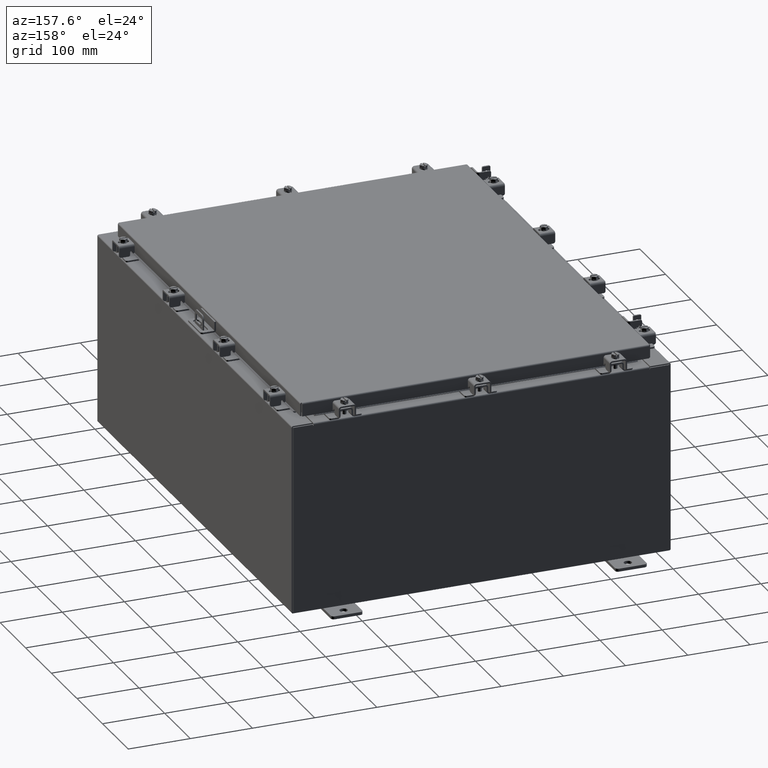
[diagram: clean part render]
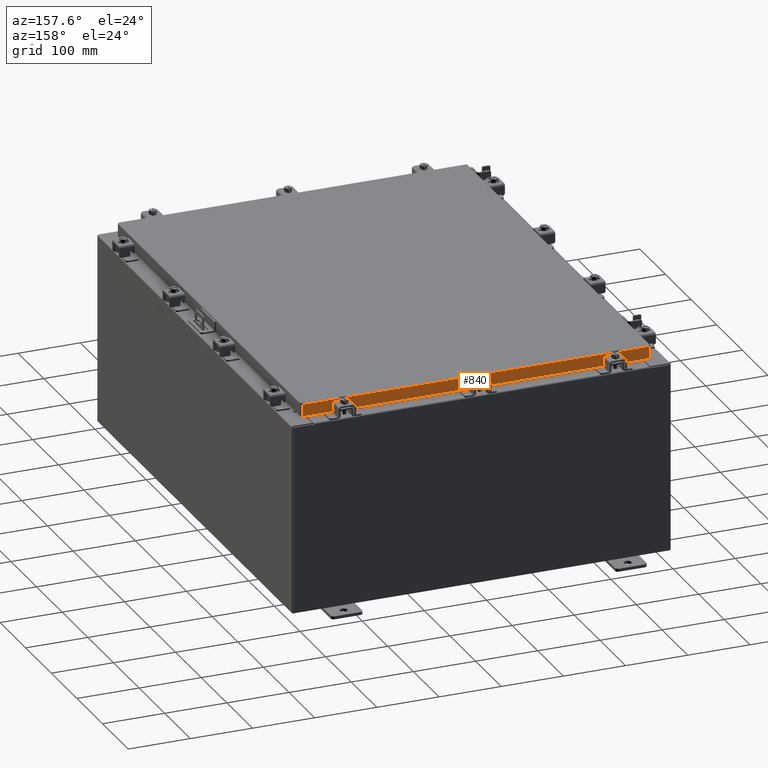
[diagram: same view with one face highlighted and labeled with its STEP entity id]
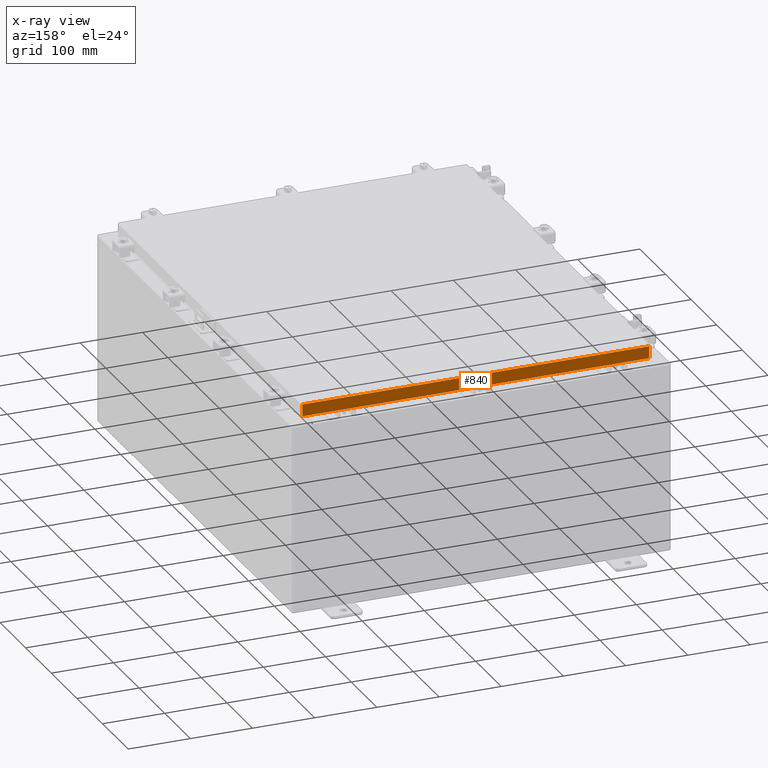
[diagram: x-ray of the same camera — body ghosted, the highlighted face saturated]
A machine part, auxiliary view. The second image highlights one B-rep face of the part: STEP entity #840.
The next image is the same camera in x-ray: the body ghosted, the highlighted face saturated — about 0% of this face is hidden behind the body in this view.
In plain terms, the highlighted planar face has unit normal (0, -1, -0).
Its self-contained STEP definition (entity closure, byte-faithful):
#253 = VECTOR ( 'NONE', #14759, 39.37007874015748100 ) ;
#344 = ORIENTED_EDGE ( 'NONE', *, *, #9688, .T. ) ;
#409 = CARTESIAN_POINT ( 'NONE',  ( -10.23915786437626700, 14.09399999999999900, -0.8500000000000033100 ) ) ;
#809 = DIRECTION ( 'NONE',  ( -0.0000000000000000000, 2.818880942772350300E-015, -1.000000000000000000 ) ) ;
#840 = ADVANCED_FACE ( 'NONE', ( #6957 ), #6889, .F. ) ;
#954 = CARTESIAN_POINT ( 'NONE',  ( -10.23915786437626700, 14.09399999999999900, -0.8500000000000033100 ) ) ;
#1164 = VERTEX_POINT ( 'NONE', #7175 ) ;
#1228 = VERTEX_POINT ( 'NONE', #1897 ) ;
#1547 = ORIENTED_EDGE ( 'NONE', *, *, #16876, .F. ) ;
#1897 = CARTESIAN_POINT ( 'NONE',  ( 10.23915786437626700, 14.09399999999999900, -0.8500000000000033100 ) ) ;
#2783 = LINE ( 'NONE', #4453, #20680 ) ;
#2849 = CARTESIAN_POINT ( 'NONE',  ( -11.07799999999999900, 14.09400000000000100, -0.8500000000000024200 ) ) ;
#4069 = ORIENTED_EDGE ( 'NONE', *, *, #8051, .F. ) ;
#4453 = CARTESIAN_POINT ( 'NONE',  ( -10.98915786437626900, 14.09399999999999900, -0.07469999999999978000 ) ) ;
#5818 = LINE ( 'NONE', #2849, #10643 ) ;
#6138 = VECTOR ( 'NONE', #17356, 39.37007874015748100 ) ;
#6440 = CARTESIAN_POINT ( 'NONE',  ( 10.98915786437626700, 14.09399999999999900, -0.08770000000000007000 ) ) ;
#6889 = PLANE ( 'NONE',  #22755 ) ;
#6957 = FACE_OUTER_BOUND ( 'NONE', #12157, .T. ) ;
#6992 = CARTESIAN_POINT ( 'NONE',  ( -4.898647335700341400E-030, 14.09399999999999900, 3.999012166344507700E-014 ) ) ;
#7175 = CARTESIAN_POINT ( 'NONE',  ( -10.98915786437626700, 14.09399999999999900, -0.08770000000000007000 ) ) ;
#7316 = DIRECTION ( 'NONE',  ( 0.0000000000000000000, 2.818880942772350300E-015, -1.000000000000000000 ) ) ;
#7333 = DIRECTION ( 'NONE',  ( 3.475696988576941300E-031, -1.000000000000000000, -2.818880942772350300E-015 ) ) ;
#7636 = LINE ( 'NONE', #22185, #16621 ) ;
#8051 = EDGE_CURVE ( 'NONE', #1228, #19890, #13294, .T. ) ;
#8655 = EDGE_CURVE ( 'NONE', #21177, #1228, #9879, .T. ) ;
#8809 = EDGE_CURVE ( 'NONE', #1164, #16333, #2783, .T. ) ;
#8851 = ORIENTED_EDGE ( 'NONE', *, *, #19695, .F. ) ;
#9688 = EDGE_CURVE ( 'NONE', #19217, #19890, #10962, .T. ) ;
#9879 = LINE ( 'NONE', #409, #253 ) ;
#10643 = VECTOR ( 'NONE', #16929, 39.37007874015748100 ) ;
#10962 = LINE ( 'NONE', #13832, #6138 ) ;
#11617 = DIRECTION ( 'NONE',  ( -1.000000000000000000, -3.475696988576942200E-031, -9.473942235605600700E-046 ) ) ;
#11805 = CARTESIAN_POINT ( 'NONE',  ( -10.98915786437626900, 14.09400000000000100, -0.8500000000000024200 ) ) ;
#12157 = EDGE_LOOP ( 'NONE', ( #1547, #344, #4069, #16326, #8851, #15488 ) ) ;
#12245 = DIRECTION ( 'NONE',  ( 1.000000000000000000, -4.379057701015054300E-047, 1.233005954894504400E-016 ) ) ;
#13294 = LINE ( 'NONE', #17524, #22091 ) ;
#13832 = CARTESIAN_POINT ( 'NONE',  ( 10.98915786437626900, 14.09399999999999900, 3.999012166344507700E-014 ) ) ;
#14759 = DIRECTION ( 'NONE',  ( 1.000000000000000000, -0.0000000000000000000, -0.0000000000000000000 ) ) ;
#15488 = ORIENTED_EDGE ( 'NONE', *, *, #8809, .F. ) ;
#16326 = ORIENTED_EDGE ( 'NONE', *, *, #8655, .F. ) ;
#16333 = VERTEX_POINT ( 'NONE', #11805 ) ;
#16621 = VECTOR ( 'NONE', #11617, 39.37007874015748100 ) ;
#16876 = EDGE_CURVE ( 'NONE', #19217, #1164, #7636, .T. ) ;
#16929 = DIRECTION ( 'NONE',  ( 1.000000000000000000, -4.379057701015054300E-047, 1.233005954894504400E-016 ) ) ;
#17356 = DIRECTION ( 'NONE',  ( 0.0000000000000000000, 2.818880942772350300E-015, -1.000000000000000000 ) ) ;
#17524 = CARTESIAN_POINT ( 'NONE',  ( -11.07799999999999900, 14.09400000000000100, -0.8500000000000024200 ) ) ;
#17611 = CARTESIAN_POINT ( 'NONE',  ( 10.98915786437626700, 14.09400000000000100, -0.8499999999999996400 ) ) ;
#19217 = VERTEX_POINT ( 'NONE', #6440 ) ;
#19695 = EDGE_CURVE ( 'NONE', #16333, #21177, #5818, .T. ) ;
#19890 = VERTEX_POINT ( 'NONE', #17611 ) ;
#20680 = VECTOR ( 'NONE', #809, 39.37007874015748100 ) ;
#21177 = VERTEX_POINT ( 'NONE', #954 ) ;
#22091 = VECTOR ( 'NONE', #12245, 39.37007874015748100 ) ;
#22185 = CARTESIAN_POINT ( 'NONE',  ( -11.07799999999999900, 14.09399999999999900, -0.08770000000000007000 ) ) ;
#22755 = AXIS2_PLACEMENT_3D ( 'NONE', #6992, #7333, #7316 ) ;